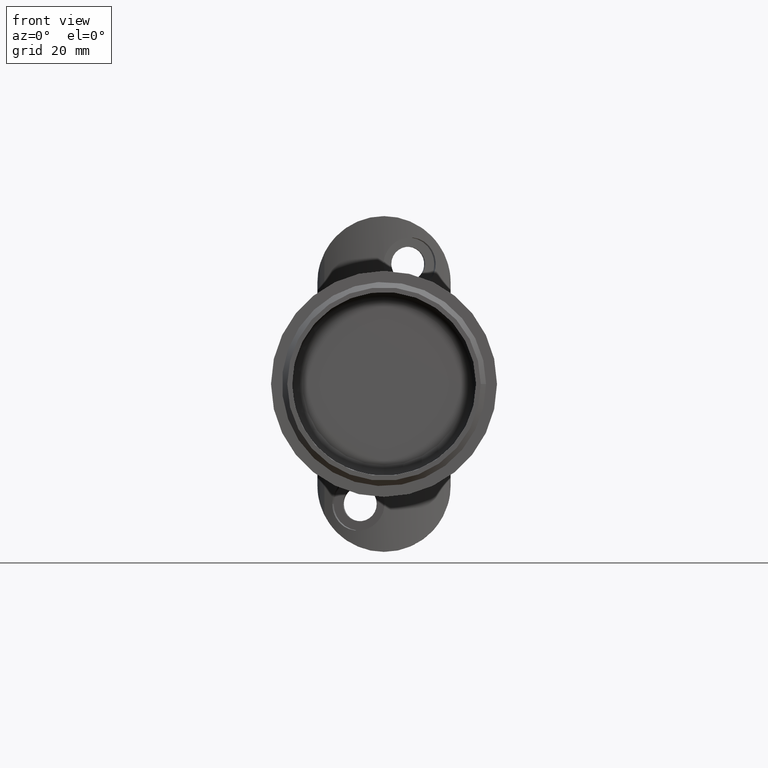
[diagram: clean part render]
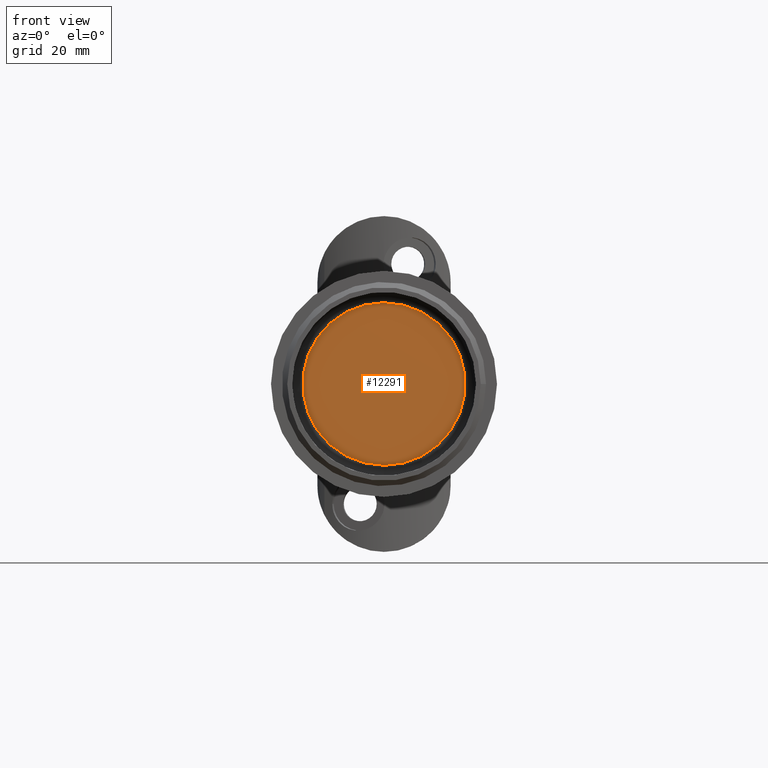
[diagram: same view with one face highlighted and labeled with its STEP entity id]
A machine part, front view. The second image highlights one B-rep face of the part: STEP entity #12291.
In plain terms, the highlighted planar face has unit normal (0, -1, 0).
Its self-contained STEP definition (entity closure, byte-faithful):
#39 = DIRECTION ( 'NONE',  ( 0.000000000000000000, -1.000000000000000000, 0.000000000000000000 ) ) ;
#635 = CARTESIAN_POINT ( 'NONE',  ( -6.938279660164178194E-15, 31.99695714726244589, 0.000000000000000000 ) ) ;
#2269 = DIRECTION ( 'NONE',  ( 0.000000000000000000, 0.000000000000000000, -1.000000000000000000 ) ) ;
#2666 = ORIENTED_EDGE ( 'NONE', *, *, #7473, .T. ) ;
#5584 = CARTESIAN_POINT ( 'NONE',  ( -7.128361590698501859E-15, 31.99695714726244589, -15.25000000000000888 ) ) ;
#7194 = CARTESIAN_POINT ( 'NONE',  ( -7.128361590698501859E-15, 31.99695714726244589, 0.000000000000000000 ) ) ;
#7473 = EDGE_CURVE ( 'NONE', #7773, #7773, #7578, .T. ) ;
#7578 = CIRCLE ( 'NONE', #11603, 15.25000000000000888 ) ;
#7773 = VERTEX_POINT ( 'NONE', #5584 ) ;
#9241 = EDGE_LOOP ( 'NONE', ( #2666 ) ) ;
#10252 = DIRECTION ( 'NONE',  ( 0.000000000000000000, -0.000000000000000000, -1.000000000000000000 ) ) ;
#11281 = DIRECTION ( 'NONE',  ( 0.000000000000000000, -1.000000000000000000, 0.000000000000000000 ) ) ;
#11524 = AXIS2_PLACEMENT_3D ( 'NONE', #635, #11281, #10252 ) ;
#11603 = AXIS2_PLACEMENT_3D ( 'NONE', #7194, #39, #2269 ) ;
#12291 = ADVANCED_FACE ( 'NONE', ( #15271 ), #15040, .T. ) ;
#15040 = PLANE ( 'NONE',  #11524 ) ;
#15271 = FACE_OUTER_BOUND ( 'NONE', #9241, .T. ) ;